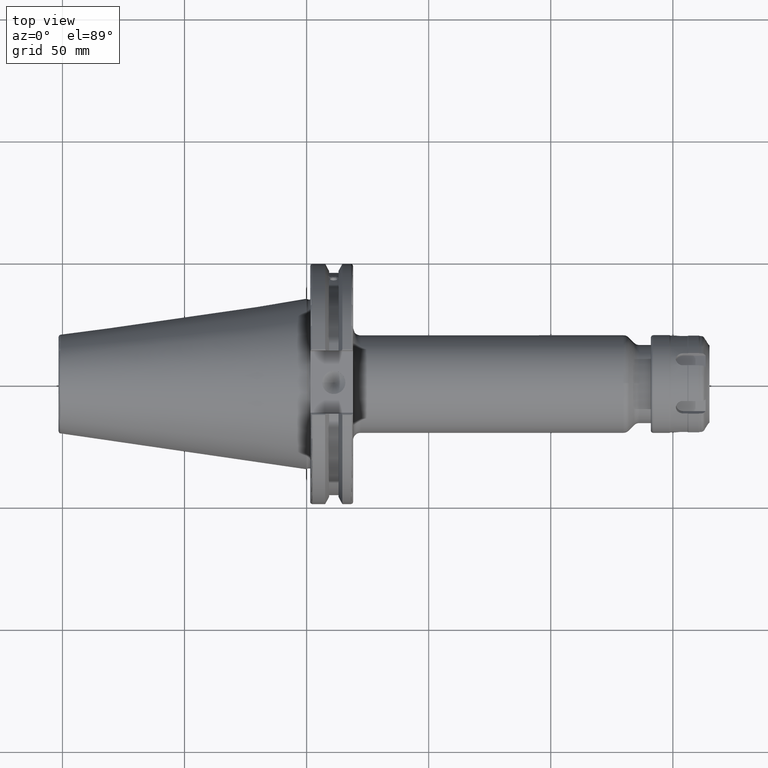
[diagram: clean part render]
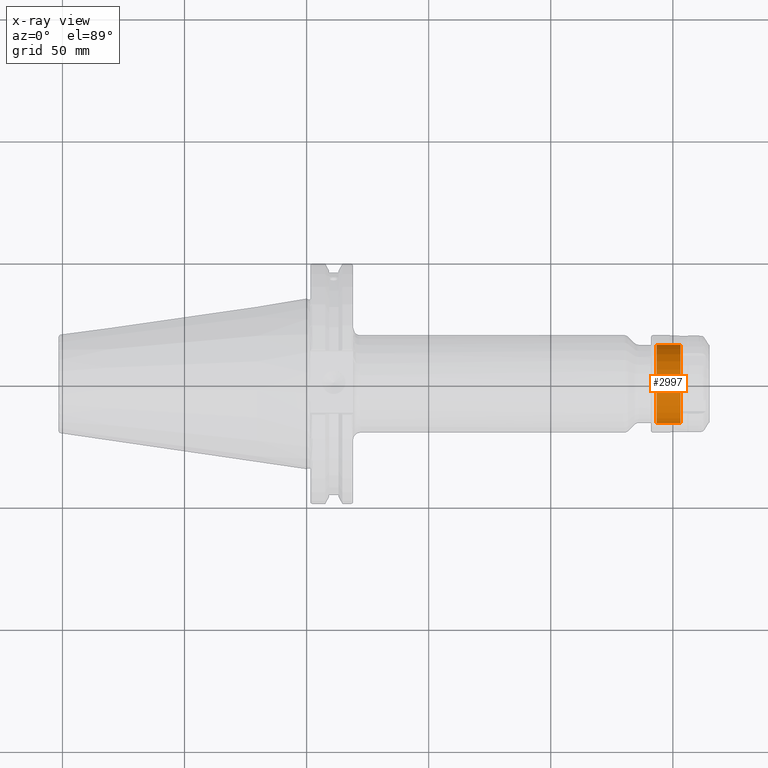
[diagram: x-ray — body ghosted, one internal face saturated and labeled with its STEP entity id]
A machine part, top view, then the same camera in x-ray: the body is ghosted and one INTERNAL B-rep face — a face not visible from any outside direction — is saturated and labeled: STEP entity #2997.
In plain terms, the highlighted cylindrical surface (bore or boss wall) has radius 16 mm, axis along (-1, 0, 0).
Its self-contained STEP definition (entity closure, byte-faithful):
#170=CYLINDRICAL_SURFACE('',#3388,16.);
#355=LINE('',#5801,#551);
#551=VECTOR('',#4219,16.);
#833=FACE_OUTER_BOUND('',#1019,.T.);
#1019=EDGE_LOOP('',(#2731,#2732,#2733,#2734,#2735));
#1181=CIRCLE('',#3386,16.);
#1182=CIRCLE('',#3387,16.);
#1183=CIRCLE('',#3389,16.);
#1476=VERTEX_POINT('',#5794);
#1477=VERTEX_POINT('',#5795);
#1478=VERTEX_POINT('',#5800);
#1909=EDGE_CURVE('',#1476,#1477,#1181,.T.);
#1910=EDGE_CURVE('',#1477,#1476,#1182,.T.);
#1912=EDGE_CURVE('',#1477,#1478,#355,.T.);
#1913=EDGE_CURVE('',#1478,#1478,#1183,.T.);
#2731=ORIENTED_EDGE('',*,*,#1909,.F.);
#2732=ORIENTED_EDGE('',*,*,#1910,.F.);
#2733=ORIENTED_EDGE('',*,*,#1912,.T.);
#2734=ORIENTED_EDGE('',*,*,#1913,.T.);
#2735=ORIENTED_EDGE('',*,*,#1912,.F.);
#2997=ADVANCED_FACE('',(#833),#170,.F.);
#3386=AXIS2_PLACEMENT_3D('',#5796,#4212,#4213);
#3387=AXIS2_PLACEMENT_3D('',#5797,#4214,#4215);
#3388=AXIS2_PLACEMENT_3D('',#5799,#4217,#4218);
#3389=AXIS2_PLACEMENT_3D('',#5802,#4220,#4221);
#4212=DIRECTION('center_axis',(1.,0.,0.));
#4213=DIRECTION('ref_axis',(0.,1.,0.));
#4214=DIRECTION('center_axis',(1.,0.,0.));
#4215=DIRECTION('ref_axis',(0.,1.,0.));
#4217=DIRECTION('center_axis',(1.,0.,0.));
#4218=DIRECTION('ref_axis',(0.,-1.,0.));
#4219=DIRECTION('',(1.,0.,0.));
#4220=DIRECTION('center_axis',(1.,0.,0.));
#4221=DIRECTION('ref_axis',(0.,1.,0.));
#5794=CARTESIAN_POINT('',(11.84641016151,-16.,0.));
#5795=CARTESIAN_POINT('',(11.84641016151,16.,1.95943487863577E-15));
#5796=CARTESIAN_POINT('Origin',(11.84641016151,0.,0.));
#5797=CARTESIAN_POINT('Origin',(11.84641016151,0.,0.));
#5799=CARTESIAN_POINT('Origin',(-1.2,0.,0.));
#5800=CARTESIAN_POINT('',(21.65358983849,16.,1.95943487863577E-15));
#5801=CARTESIAN_POINT('',(-1.2,16.,1.95943487863577E-15));
#5802=CARTESIAN_POINT('Origin',(21.65358983849,0.,0.));